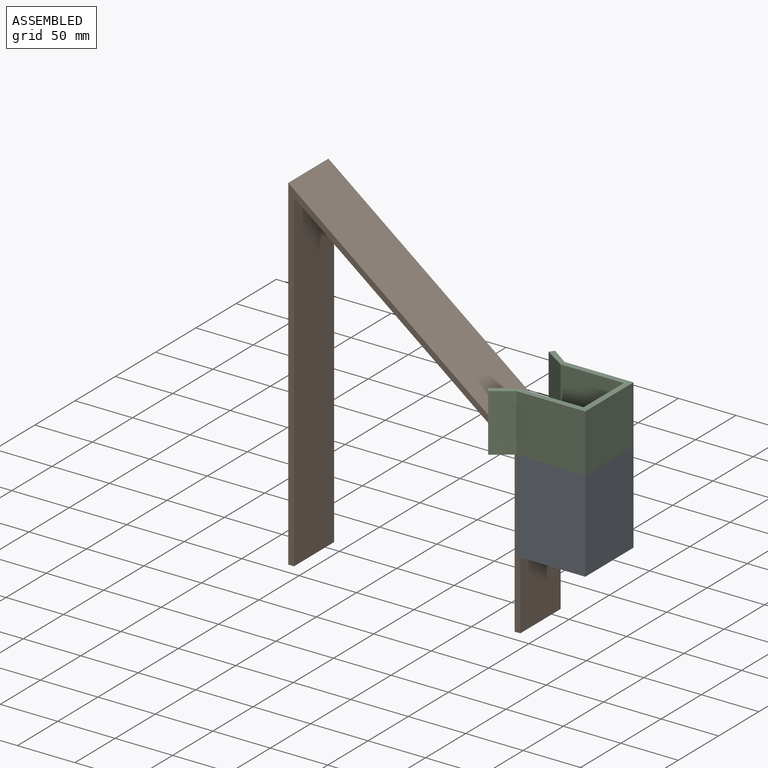
[diagram: assembled view]
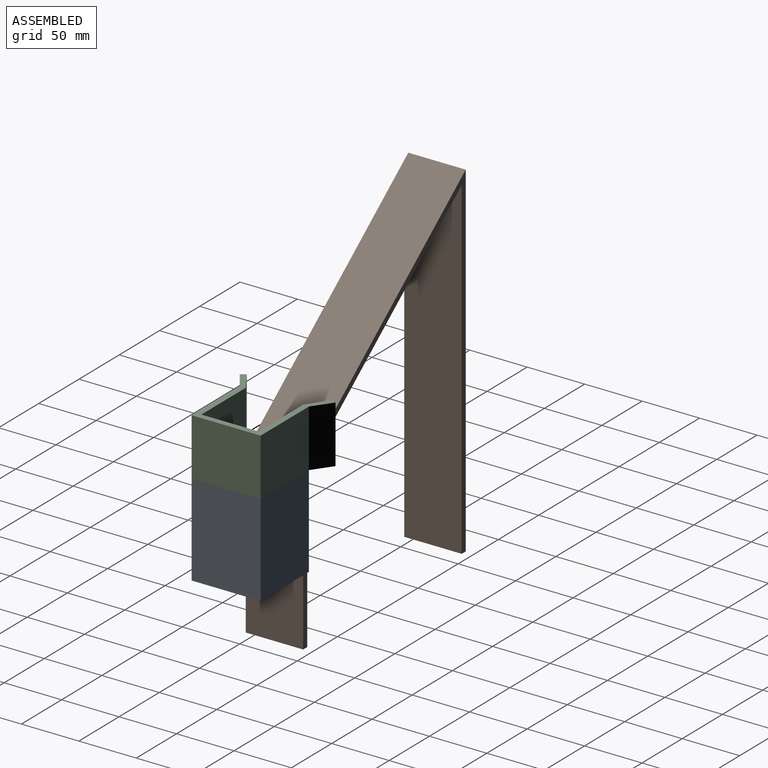
[diagram: assembled view, second angle]
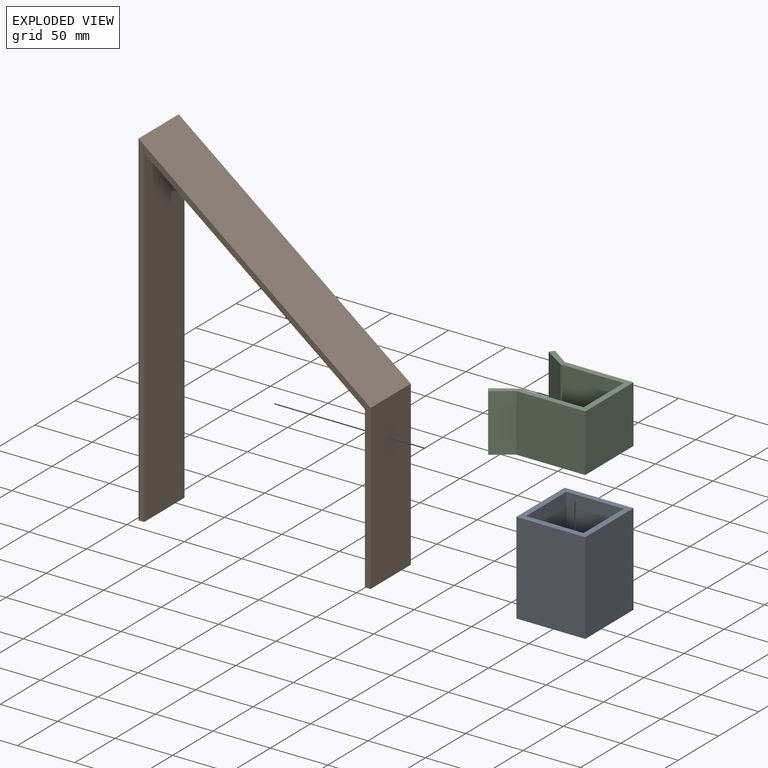
[diagram: exploded view]
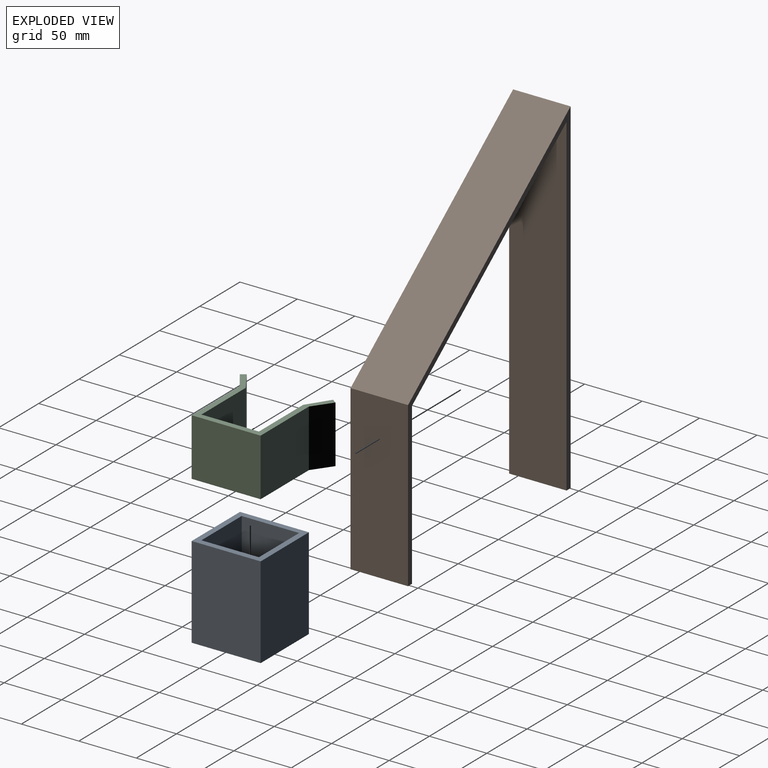
[diagram: exploded view, second angle]
ASSEMBLY  parts=3 mates=2
PART A: 10 faces, bbox 60x60x80 mm
  f0: plane 80x50mm, normal (0,-1,0), area 4000mm2, adj f1,f7,f8,f9
  f1: plane 80x50mm, normal (-1,0,0), area 4000mm2, adj f0,f2,f8,f9
  f2: plane 80x50mm, normal (0,1,0), area 4000mm2, adj f1,f7,f8,f9
  f3: plane 80x60mm, normal (1,0,0), area 4800mm2, adj f4,f6,f8,f9
  f4: plane 80x60mm, normal (0,1,0), area 4800mm2, adj f3,f5,f8,f9
  f5: plane 80x60mm, normal (-1,0,0), area 4800mm2, adj f4,f6,f8,f9
  f6: plane 80x60mm, normal (0,-1,0), area 4800mm2, adj f3,f5,f8,f9
  f7: plane 80x50mm, normal (1,0,0), area 4000mm2, adj f0,f2,f8,f9
  f8: plane 60x60mm, normal (0,0,1), area 1100mm2, adj f0,f1,f2,f3,f4,f5,f6,f7
  f9: plane 60x60mm, normal (0,0,-1), area 1100mm2, adj f0,f1,f2,f3,f4,f5,f6,f7
PART B: 10 faces, bbox 202x50x300.3 mm
  f0: plane 50x5mm, normal (0,0,-1), area 250mm2, adj f1,f7,f8,f9
  f1: plane 290x50mm, normal (1,0,0), area 14500mm2, adj f0,f2,f8,f9
  f2: plane 192x150mm, normal (-0.62,0,-0.79), area 12182.4mm2, adj f1,f3,f8,f9
  f3: plane 140x50mm, normal (-1,0,0), area 7000mm2, adj f2,f4,f8,f9
  f4: plane 50x5mm, normal (0,0,-1), area 250mm2, adj f3,f5,f8,f9
  f5: plane 142.44x50mm, normal (1,0,0), area 7121.9mm2, adj f4,f6,f8,f9
  f6: plane 202x157.81mm, normal (0.62,0,0.79), area 12816.9mm2, adj f5,f7,f8,f9
  f7: plane 300.25x50mm, normal (-1,0,0), area 15012.6mm2, adj f0,f6,f8,f9
  f8: plane 300.25x202mm, normal (0,-1,0), area 3431.7mm2, adj f0,f1,f2,f3,f4,f5,f6,f7
  f9: plane 300.25x202mm, normal (0,1,0), area 3431.7mm2, adj f0,f1,f2,f3,f4,f5,f6,f7
PART C: 14 faces, bbox 79.3x83.3x50 mm
  f0: plane 55x50mm, normal (0,1,0), area 2750mm2, adj f5,f6,f7,f12
  f1: plane 60x50mm, normal (0,-1,0), area 3000mm2, adj f2,f6,f7,f11
  f2: plane 60x50mm, normal (1,0,0), area 3000mm2, adj f1,f3,f6,f7
  f3: plane 60x50mm, normal (0,1,0), area 3000mm2, adj f2,f6,f7,f9
  f4: plane 55x50mm, normal (0,-1,0), area 2750mm2, adj f5,f6,f7,f8
  f5: plane 50x50mm, normal (-1,0,0), area 2500mm2, adj f0,f4,f6,f7
  f6: plane 83.31x79.25mm, normal (0,0,1), area 1046.7mm2, adj f0,f1,f2,f3,f4,f5,f8,f9
  f7: plane 83.31x79.25mm, normal (0,0,-1), area 1046.7mm2, adj f0,f1,f2,f3,f4,f5,f8,f9
  f8: plane 50x19.25mm, normal (-0.55,-0.84,0), area 1150mm2, adj f4,f6,f7,f10
  f9: plane 50x16.35mm, normal (0.58,0.81,0), area 1004mm2, adj f3,f6,f7,f10
  f10: plane 50x4.07mm, normal (-0.81,0.58,0), area 250mm2, adj f6,f7,f8,f9
  f11: plane 50x16.35mm, normal (0.58,-0.81,0), area 1004mm2, adj f1,f6,f7,f13
  f12: plane 50x19.25mm, normal (-0.55,0.84,0), area 1150mm2, adj f0,f6,f7,f13
  f13: plane 50x4.07mm, normal (-0.81,-0.58,0), area 250mm2, adj f6,f7,f11,f12
PLACE A t=(172.55,-25,62.44)mm
PLACE B at identity
PLACE C t=(172.55,-25,142.44)mm
MATE planar A.f5 <-> B.f5  axis (-1,0,0) through (142.55,-25,142.44)mm
MATE planar C.f2 <-> A.f3  axis (1,0,0) through (202.55,-25,142.44)mm
